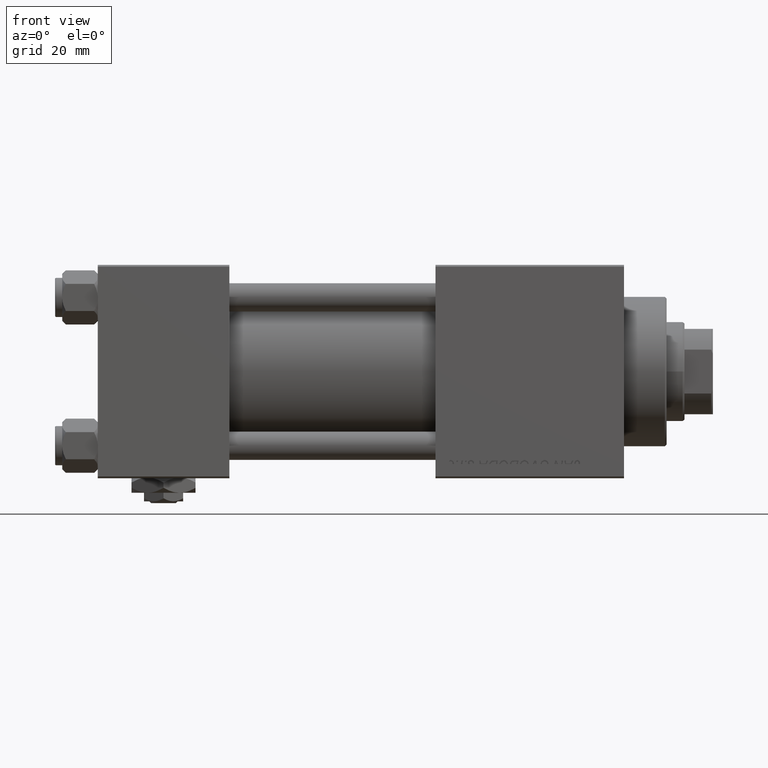
[diagram: clean part render]
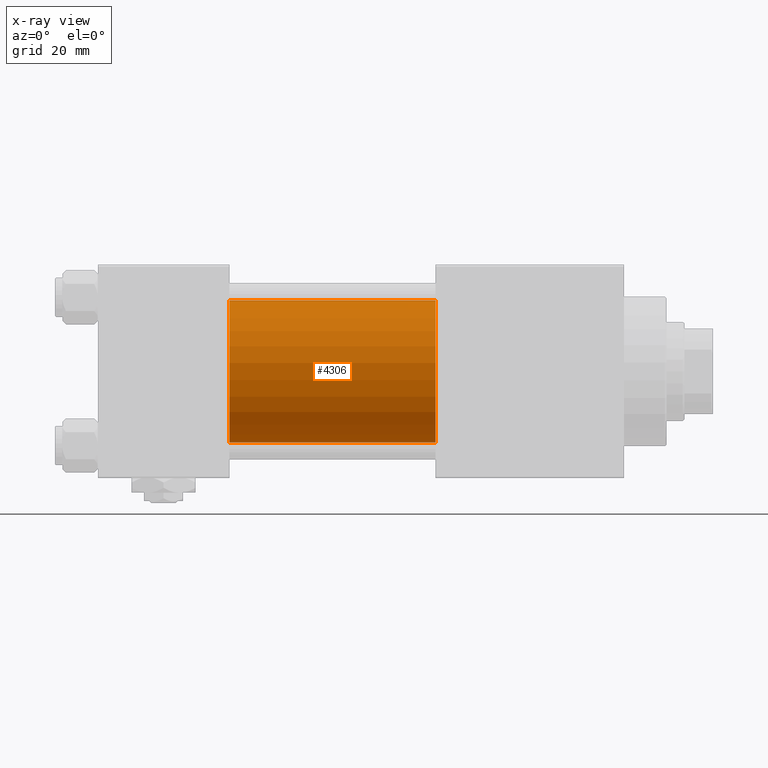
[diagram: x-ray — body ghosted, one internal face saturated and labeled with its STEP entity id]
A machine part, front view, then the same camera in x-ray: the body is ghosted and one INTERNAL B-rep face — a face not visible from any outside direction — is saturated and labeled: STEP entity #4306.
In plain terms, the highlighted cylindrical surface (partial cylindrical patch) has radius 20 mm, axis along (-1, -0, -0).
Its self-contained STEP definition (entity closure, byte-faithful):
#534 = EDGE_LOOP ( 'NONE', ( #41481, #26238, #36883, #11180 ) ) ;
#995 = DIRECTION ( 'NONE',  ( -1.000000000000000000, -0.000000000000000000, -0.000000000000000000 ) ) ;
#1121 = CIRCLE ( 'NONE', #43099, 20.00000000000000000 ) ;
#2837 = CARTESIAN_POINT ( 'NONE',  ( 37.00000000000000000, -1.527916156705046464E-16, -20.00000000000000000 ) ) ;
#4306 = ADVANCED_FACE ( 'NONE', ( #5881 ), #30035, .F. ) ;
#5881 = FACE_OUTER_BOUND ( 'NONE', #534, .T. ) ;
#8468 = EDGE_CURVE ( 'NONE', #48428, #23105, #1121, .T. ) ;
#9164 = DIRECTION ( 'NONE',  ( 0.000000000000000000, 0.000000000000000000, -1.000000000000000000 ) ) ;
#10083 = DIRECTION ( 'NONE',  ( 0.000000000000000000, 0.000000000000000000, 1.000000000000000000 ) ) ;
#10432 = CARTESIAN_POINT ( 'NONE',  ( 37.00000000000000000, -2.602085213965210642E-15, 0.000000000000000000 ) ) ;
#10949 = DIRECTION ( 'NONE',  ( 1.000000000000000000, 0.000000000000000000, 0.000000000000000000 ) ) ;
#11180 = ORIENTED_EDGE ( 'NONE', *, *, #28839, .F. ) ;
#11370 = CARTESIAN_POINT ( 'NONE',  ( 95.00000000000000000, -1.527916156705046464E-16, -20.00000000000000000 ) ) ;
#11394 = VERTEX_POINT ( 'NONE', #17598 ) ;
#12255 = EDGE_CURVE ( 'NONE', #11394, #21904, #16354, .T. ) ;
#16354 = CIRCLE ( 'NONE', #34783, 20.00000000000000000 ) ;
#17021 = LINE ( 'NONE', #44357, #36967 ) ;
#17598 = CARTESIAN_POINT ( 'NONE',  ( 37.00000000000000000, -2.602085213965210642E-15, 20.00000000000000000 ) ) ;
#20225 = CARTESIAN_POINT ( 'NONE',  ( 95.00000000000000000, -2.602085213965210642E-15, 0.000000000000000000 ) ) ;
#21256 = CARTESIAN_POINT ( 'NONE',  ( 95.00000000000000000, -1.527916156705046464E-16, -20.00000000000000000 ) ) ;
#21616 = EDGE_CURVE ( 'NONE', #23105, #21904, #30791, .T. ) ;
#21904 = VERTEX_POINT ( 'NONE', #2837 ) ;
#23105 = VERTEX_POINT ( 'NONE', #21256 ) ;
#24483 = CARTESIAN_POINT ( 'NONE',  ( 95.00000000000000000, -2.602085213965210642E-15, 20.00000000000000000 ) ) ;
#24613 = AXIS2_PLACEMENT_3D ( 'NONE', #46327, #46069, #10083 ) ;
#26238 = ORIENTED_EDGE ( 'NONE', *, *, #21616, .T. ) ;
#28839 = EDGE_CURVE ( 'NONE', #48428, #11394, #17021, .T. ) ;
#30035 = CYLINDRICAL_SURFACE ( 'NONE', #24613, 20.00000000000000000 ) ;
#30791 = LINE ( 'NONE', #11370, #45074 ) ;
#34783 = AXIS2_PLACEMENT_3D ( 'NONE', #10432, #10949, #38015 ) ;
#36883 = ORIENTED_EDGE ( 'NONE', *, *, #12255, .F. ) ;
#36967 = VECTOR ( 'NONE', #995, 1000.000000000000000 ) ;
#38015 = DIRECTION ( 'NONE',  ( 0.000000000000000000, 0.000000000000000000, -1.000000000000000000 ) ) ;
#39214 = DIRECTION ( 'NONE',  ( -1.000000000000000000, -0.000000000000000000, -0.000000000000000000 ) ) ;
#41481 = ORIENTED_EDGE ( 'NONE', *, *, #8468, .T. ) ;
#43099 = AXIS2_PLACEMENT_3D ( 'NONE', #20225, #45154, #9164 ) ;
#44357 = CARTESIAN_POINT ( 'NONE',  ( 95.00000000000000000, -2.602085213965210642E-15, 20.00000000000000000 ) ) ;
#45074 = VECTOR ( 'NONE', #39214, 1000.000000000000000 ) ;
#45154 = DIRECTION ( 'NONE',  ( 1.000000000000000000, 0.000000000000000000, 0.000000000000000000 ) ) ;
#46069 = DIRECTION ( 'NONE',  ( -1.000000000000000000, -0.000000000000000000, -0.000000000000000000 ) ) ;
#46327 = CARTESIAN_POINT ( 'NONE',  ( 95.00000000000000000, -2.602085213965210642E-15, 0.000000000000000000 ) ) ;
#48428 = VERTEX_POINT ( 'NONE', #24483 ) ;